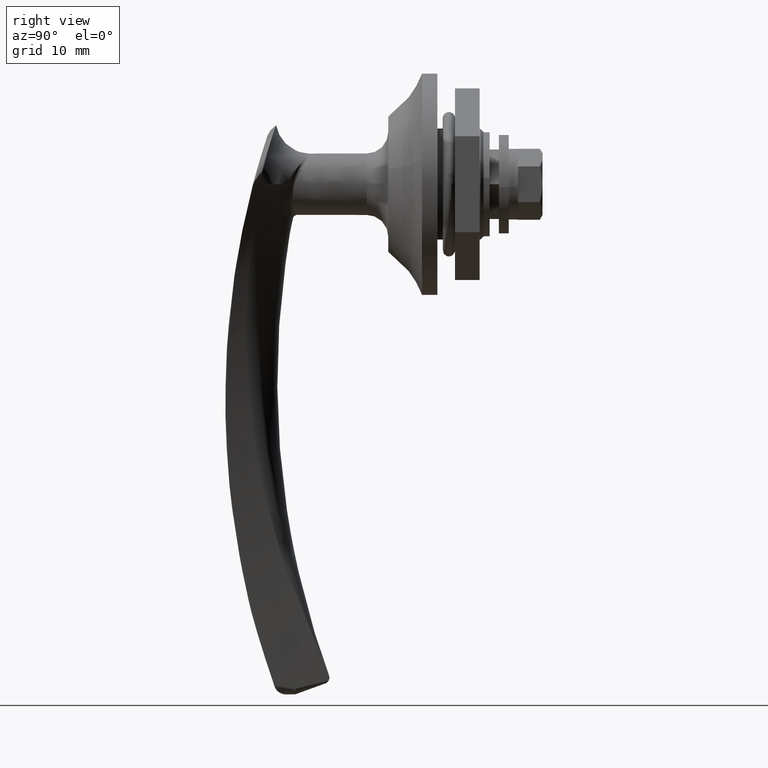
[diagram: clean part render]
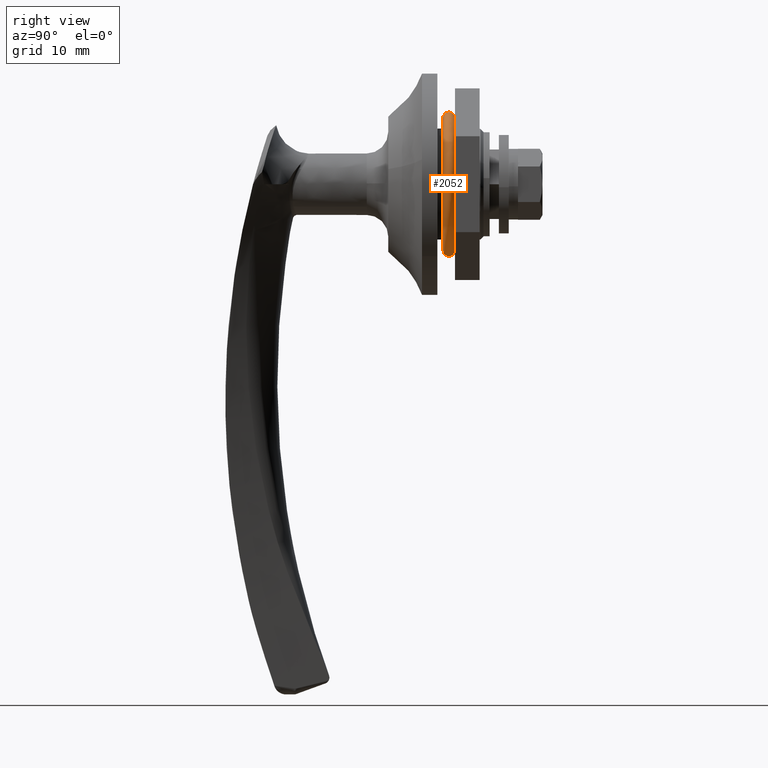
[diagram: same view with one face highlighted and labeled with its STEP entity id]
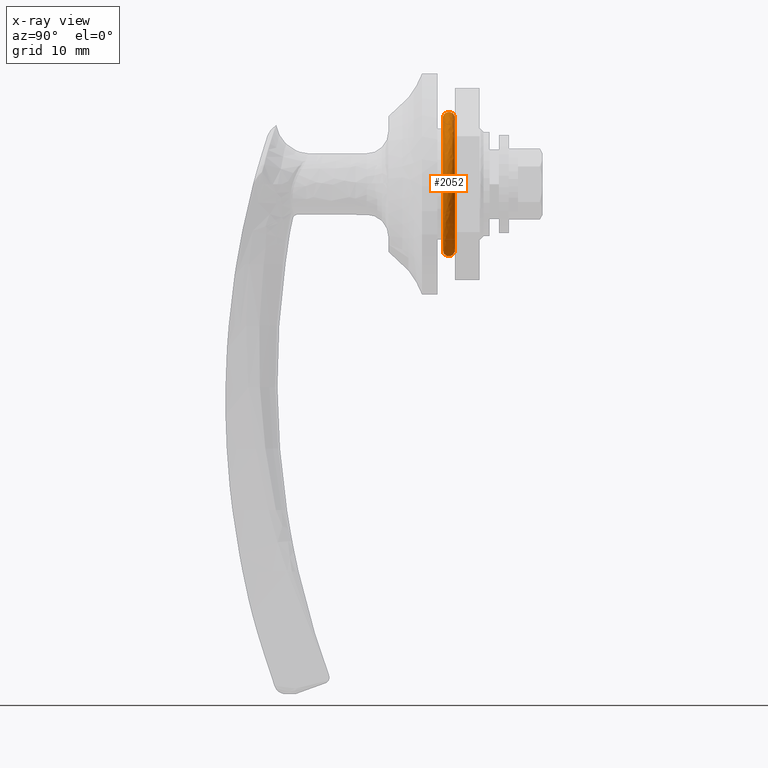
[diagram: x-ray of the same camera — body ghosted, the highlighted face saturated]
A machine part, right view. The second image highlights one B-rep face of the part: STEP entity #2052.
The next image is the same camera in x-ray: the body ghosted, the highlighted face saturated — about 0% of this face is hidden behind the body in this view.
In plain terms, the highlighted face is a freeform B-spline surface patch.
Its self-contained STEP definition (entity closure, byte-faithful):
#1343=CARTESIAN_POINT('',(10.836264016436090,-7.960000526219821,7.580618177243414));
#1344=VERTEX_POINT('',#1343);
#1345=CARTESIAN_POINT('',(10.836264016425959,0.0,10.992150850792280));
#1346=VERTEX_POINT('',#1345);
#1347=CARTESIAN_POINT('',(10.836264016436086,-7.960000526219821,7.580618177243415));
#1348=CARTESIAN_POINT('',(10.836264016425963,-4.711065575594165,10.992150850792280));
#1349=CARTESIAN_POINT('',(10.836264016425959,0.0,10.992150850792280));
#1357=(BOUNDED_CURVE()B_SPLINE_CURVE(2,(#1347,#1348,#1349),.UNSPECIFIED.,.F.,.U.)B_SPLINE_CURVE_WITH_KNOTS((3,3),(0.871317008225169,1.0),.UNSPECIFIED.)CURVE()GEOMETRIC_REPRESENTATION_ITEM()RATIONAL_B_SPLINE_CURVE((0.853680524324454,0.849238497330099,1.0))REPRESENTATION_ITEM(''));
#1358=EDGE_CURVE('',#1344,#1346,#1357,.T.);
#1416=CARTESIAN_POINT('',(10.836264016425959,-10.991732303369110,0.095923394671522));
#1417=VERTEX_POINT('',#1416);
#1423=CARTESIAN_POINT('',(10.836264016425959,0.0,-10.992150850792280));
#1424=VERTEX_POINT('',#1423);
#1425=CARTESIAN_POINT('',(10.836264016425959,0.0,-10.992150850792280));
#1426=CARTESIAN_POINT('',(10.836264016425961,-10.992150850792280,-10.992150850792280));
#1427=CARTESIAN_POINT('',(10.836264016425959,-10.992150850792280,0.0));
#1428=CARTESIAN_POINT('',(10.836264016425964,-10.992150850792280,0.047962610504658));
#1429=CARTESIAN_POINT('',(10.836264016425963,-10.991732303369110,0.095923394671522));
#1437=(BOUNDED_CURVE()B_SPLINE_CURVE(2,(#1425,#1426,#1427,#1428,#1429),.UNSPECIFIED.,.F.,.U.)B_SPLINE_CURVE_WITH_KNOTS((3,2,3),(0.500000000000000,0.750000000000000,0.751539894337185),.UNSPECIFIED.)CURVE()GEOMETRIC_REPRESENTATION_ITEM()RATIONAL_B_SPLINE_CURVE((1.0,0.707106781186547,1.0,0.998195901563797,0.996414028095320))REPRESENTATION_ITEM(''));
#1438=EDGE_CURVE('',#1424,#1417,#1437,.T.);
#1440=CARTESIAN_POINT('',(10.836264015824010,10.913029411000570,-1.316498938181733));
#1441=VERTEX_POINT('',#1440);
#1442=CARTESIAN_POINT('',(10.836264015824009,10.913029411000569,-1.316498938181733));
#1443=CARTESIAN_POINT('',(10.836264016425961,9.745802143800123,-10.992150850792282));
#1444=CARTESIAN_POINT('',(10.836264016425959,0.0,-10.992150850792280));
#1452=(BOUNDED_CURVE()B_SPLINE_CURVE(2,(#1442,#1443,#1444),.UNSPECIFIED.,.F.,.U.)B_SPLINE_CURVE_WITH_KNOTS((3,3),(0.270732403715610,0.500000000000000),.UNSPECIFIED.)CURVE()GEOMETRIC_REPRESENTATION_ITEM()RATIONAL_B_SPLINE_CURVE((0.955449597717405,0.731396303018567,1.0))REPRESENTATION_ITEM(''));
#1453=EDGE_CURVE('',#1441,#1424,#1452,.T.);
#1455=CARTESIAN_POINT('',(10.836264015993150,0.690202862807114,10.970460353734980));
#1456=VERTEX_POINT('',#1455);
#1472=CARTESIAN_POINT('',(10.836264016425959,0.0,10.992150850792280));
#1473=CARTESIAN_POINT('',(10.836264016425961,0.345442257058135,10.992150850792278));
#1474=CARTESIAN_POINT('',(10.836264015993146,0.690202862807114,10.970460353734982));
#1482=(BOUNDED_CURVE()B_SPLINE_CURVE(2,(#1472,#1473,#1474),.UNSPECIFIED.,.F.,.U.)B_SPLINE_CURVE_WITH_KNOTS((3,3),(0.0,0.010968089260653),.UNSPECIFIED.)CURVE()GEOMETRIC_REPRESENTATION_ITEM()RATIONAL_B_SPLINE_CURVE((1.0,0.987150084128857,0.975427680451846))REPRESENTATION_ITEM(''));
#1483=EDGE_CURVE('',#1346,#1456,#1482,.T.);
#1502=CARTESIAN_POINT('',(10.836264016425957,-10.991732303369114,0.095923394671522));
#1503=CARTESIAN_POINT('',(10.836264016425961,-10.953848839930410,4.436938326126100));
#1504=CARTESIAN_POINT('',(10.836264016436086,-7.960000526219821,7.580618177243413));
#1512=(BOUNDED_CURVE()B_SPLINE_CURVE(2,(#1502,#1503,#1504),.UNSPECIFIED.,.F.,.U.)B_SPLINE_CURVE_WITH_KNOTS((3,3),(0.751539894337186,0.871317008225168),.UNSPECIFIED.)CURVE()GEOMETRIC_REPRESENTATION_ITEM()RATIONAL_B_SPLINE_CURVE((0.996414028095317,0.857815128018838,0.853680524324454))REPRESENTATION_ITEM(''));
#1513=EDGE_CURVE('',#1417,#1344,#1512,.T.);
#1559=CARTESIAN_POINT('',(10.851271133225840,-3.719715318302238,9.903326518320645));
#1560=VERTEX_POINT('',#1559);
#1561=CARTESIAN_POINT('',(10.851271133225840,0.0,10.578854294189201));
#1562=VERTEX_POINT('',#1561);
#1563=CARTESIAN_POINT('',(10.851271133225840,-3.719715318302237,9.903326518320645));
#1564=CARTESIAN_POINT('',(10.851271133225842,-1.921198075944244,10.578854294189199));
#1565=CARTESIAN_POINT('',(10.851271133225840,0.0,10.578854294189201));
#1573=(BOUNDED_CURVE()B_SPLINE_CURVE(2,(#1563,#1564,#1565),.UNSPECIFIED.,.F.,.U.)B_SPLINE_CURVE_WITH_KNOTS((3,3),(0.940284170899042,1.0),.UNSPECIFIED.)CURVE()GEOMETRIC_REPRESENTATION_ITEM()RATIONAL_B_SPLINE_CURVE((0.893499554635928,0.930038554402025,1.0))REPRESENTATION_ITEM(''));
#1574=EDGE_CURVE('',#1560,#1562,#1573,.T.);
#1576=CARTESIAN_POINT('',(10.851271133151551,0.664251757182051,10.557979341318950));
#1577=VERTEX_POINT('',#1576);
#1578=CARTESIAN_POINT('',(10.851271133225840,0.0,10.578854294189201));
#1579=CARTESIAN_POINT('',(10.851271133225836,0.332453889535047,10.578854294189197));
#1580=CARTESIAN_POINT('',(10.851271133151547,0.664251757182051,10.557979341318953));
#1588=(BOUNDED_CURVE()B_SPLINE_CURVE(2,(#1578,#1579,#1580),.UNSPECIFIED.,.F.,.U.)B_SPLINE_CURVE_WITH_KNOTS((3,3),(0.0,0.010968089261328),.UNSPECIFIED.)CURVE()GEOMETRIC_REPRESENTATION_ITEM()RATIONAL_B_SPLINE_CURVE((1.0,0.987150084128065,0.975427680450402))REPRESENTATION_ITEM(''));
#1589=EDGE_CURVE('',#1562,#1577,#1588,.T.);
#1591=CARTESIAN_POINT('',(10.851271132507931,10.502707754238291,-1.266999573522850));
#1592=VERTEX_POINT('',#1591);
#1608=CARTESIAN_POINT('',(10.851271133225840,0.0,-10.578854294189201));
#1609=VERTEX_POINT('',#1608);
#1610=CARTESIAN_POINT('',(10.851271132507927,10.502707754238298,-1.266999573522849));
#1611=CARTESIAN_POINT('',(10.851271133225840,9.379367355234580,-10.578854294189199));
#1612=CARTESIAN_POINT('',(10.851271133225840,0.0,-10.578854294189201));
#1620=(BOUNDED_CURVE()B_SPLINE_CURVE(2,(#1610,#1611,#1612),.UNSPECIFIED.,.F.,.U.)B_SPLINE_CURVE_WITH_KNOTS((3,3),(0.270732403724593,0.500000000000000),.UNSPECIFIED.)CURVE()GEOMETRIC_REPRESENTATION_ITEM()RATIONAL_B_SPLINE_CURVE((0.955449597699848,0.731396303029092,1.0))REPRESENTATION_ITEM(''));
#1621=EDGE_CURVE('',#1592,#1609,#1620,.T.);
#1623=CARTESIAN_POINT('',(10.851271133225840,-10.559122598462629,-0.645823604648349));
#1624=VERTEX_POINT('',#1623);
#1625=CARTESIAN_POINT('',(10.851271133225840,0.0,-10.578854294189201));
#1626=CARTESIAN_POINT('',(10.851271133225838,-9.951592415387072,-10.578854294189199));
#1627=CARTESIAN_POINT('',(10.851271133225843,-10.559122598462636,-0.645823604648349));
#1635=(BOUNDED_CURVE()B_SPLINE_CURVE(2,(#1625,#1626,#1627),.UNSPECIFIED.,.F.,.U.)B_SPLINE_CURVE_WITH_KNOTS((3,3),(0.500000000000000,0.739332962240790),.UNSPECIFIED.)CURVE()GEOMETRIC_REPRESENTATION_ITEM()RATIONAL_B_SPLINE_CURVE((1.0,0.719603993284546,0.976072041670677))REPRESENTATION_ITEM(''));
#1636=EDGE_CURVE('',#1609,#1624,#1635,.T.);
#1714=CARTESIAN_POINT('',(10.851271133225836,-10.559122598462629,-0.645823604648349));
#1715=CARTESIAN_POINT('',(10.851271133225842,-10.578854294189204,-0.323213231256773));
#1716=CARTESIAN_POINT('',(10.851271133225840,-10.578854294189201,0.0));
#1717=CARTESIAN_POINT('',(10.851271133225842,-10.578854294189201,7.327015995615085));
#1718=CARTESIAN_POINT('',(10.851271133225840,-3.719715318302238,9.903326518320645));
#1726=(BOUNDED_CURVE()B_SPLINE_CURVE(2,(#1714,#1715,#1716,#1717,#1718),.UNSPECIFIED.,.F.,.U.)B_SPLINE_CURVE_WITH_KNOTS((3,2,3),(0.739332962240790,0.750000000000000,0.940284170899041),.UNSPECIFIED.)CURVE()GEOMETRIC_REPRESENTATION_ITEM()RATIONAL_B_SPLINE_CURVE((0.976072041670677,0.987502787902002,1.0,0.777068226784523,0.893499554635927))REPRESENTATION_ITEM(''));
#1727=EDGE_CURVE('',#1624,#1560,#1726,.T.);
#1931=CARTESIAN_POINT('',(10.843426542434676,10.882492984873142,-1.312815160585779));
#1932=CARTESIAN_POINT('',(10.843426542434678,9.642731472020071,-11.589734845546797));
#1933=CARTESIAN_POINT('',(10.843426542434679,-0.688271563272054,-10.939763227184949));
#1934=CARTESIAN_POINT('',(10.843426542434678,-11.628034790457003,-10.251491663912892));
#1935=CARTESIAN_POINT('',(10.843426542434679,-10.939763227184949,0.688271563272049));
#1936=CARTESIAN_POINT('',(10.843426542434678,-10.251491663912889,11.628034790457004));
#1937=CARTESIAN_POINT('',(10.843426542434679,0.688271563272048,10.939763227184949));
#1938=CARTESIAN_POINT('',(10.649795165591527,11.771326764155843,-1.420040082513599));
#1939=CARTESIAN_POINT('',(10.649795165591527,10.430307027437141,-12.536333004440245));
#1940=CARTESIAN_POINT('',(10.649795165591527,-0.744486533096181,-11.833274585951063));
#1941=CARTESIAN_POINT('',(10.649795165591527,-12.577761119047242,-11.088788052854881));
#1942=CARTESIAN_POINT('',(10.649795165591527,-11.833274585951063,0.744486533096175));
#1943=CARTESIAN_POINT('',(10.649795165591527,-11.088788052854877,12.577761119047247));
#1944=CARTESIAN_POINT('',(10.649795165591527,0.744486533096174,11.833274585951063));
#1945=CARTESIAN_POINT('',(9.741003858425664,11.657634065980297,-1.406324705162085));
#1946=CARTESIAN_POINT('',(9.741003858425662,10.329566493043037,-12.415251536475051));
#1947=CARTESIAN_POINT('',(9.741003858425662,-0.737295951745504,-11.718983568219270));
#1948=CARTESIAN_POINT('',(9.741003858425662,-12.456279519964772,-10.981687616473765));
#1949=CARTESIAN_POINT('',(9.741003858425662,-11.718983568219270,0.737295951745498));
#1950=CARTESIAN_POINT('',(9.741003858425662,-10.981687616473760,12.456279519964776));
#1951=CARTESIAN_POINT('',(9.741003858425662,0.737295951745497,11.718983568219270));
#1952=CARTESIAN_POINT('',(8.832212551259799,11.543941367804750,-1.392609327810568));
#1953=CARTESIAN_POINT('',(8.832212551259799,10.228825958648931,-12.294170068509858));
#1954=CARTESIAN_POINT('',(8.832212551259799,-0.730105370394827,-11.604692550487473));
#1955=CARTESIAN_POINT('',(8.832212551259799,-12.334797920882298,-10.874587180092645));
#1956=CARTESIAN_POINT('',(8.832212551259799,-11.604692550487474,0.730105370394821));
#1957=CARTESIAN_POINT('',(8.832212551259799,-10.874587180092641,12.334797920882306));
#1958=CARTESIAN_POINT('',(8.832212551259799,0.730105370394820,11.604692550487474));
#1959=CARTESIAN_POINT('',(8.866735931143843,10.635202669391605,-1.282983165685211));
#1960=CARTESIAN_POINT('',(8.866735931143841,9.423613103541992,-11.326373390567094));
#1961=CARTESIAN_POINT('',(8.866735931143841,-0.672631498789118,-10.691171520899980));
#1962=CARTESIAN_POINT('',(8.866735931143841,-11.363803019689094,-10.018540022110857));
#1963=CARTESIAN_POINT('',(8.866735931143841,-10.691171520899980,0.672631498789113));
#1964=CARTESIAN_POINT('',(8.866735931143841,-10.018540022110853,11.363803019689097));
#1965=CARTESIAN_POINT('',(8.866735931143841,0.672631498789112,10.691171520899980));
#1966=CARTESIAN_POINT('',(8.901259311027882,9.726463970978459,-1.173357003559854));
#1967=CARTESIAN_POINT('',(8.901259311027886,8.618400248435046,-10.358576712624329));
#1968=CARTESIAN_POINT('',(8.901259311027884,-0.615157627183409,-9.777650491312476));
#1969=CARTESIAN_POINT('',(8.901259311027884,-10.392808118495884,-9.162492864129069));
#1970=CARTESIAN_POINT('',(8.901259311027884,-9.777650491312478,0.615157627183404));
#1971=CARTESIAN_POINT('',(8.901259311027884,-9.162492864129064,10.392808118495889));
#1972=CARTESIAN_POINT('',(8.901259311027884,0.615157627183404,9.777650491312478));
#1973=CARTESIAN_POINT('',(9.816094850547531,9.681057882750945,-1.167879416660341));
#1974=CARTESIAN_POINT('',(9.816094850547529,8.578166938238438,-10.310219730114721));
#1975=CARTESIAN_POINT('',(9.816094850547531,-0.612285884525742,-9.732005448860148));
#1976=CARTESIAN_POINT('',(9.816094850547531,-10.344291333385890,-9.119719564334405));
#1977=CARTESIAN_POINT('',(9.816094850547531,-9.732005448860148,0.612285884525737));
#1978=CARTESIAN_POINT('',(9.816094850547531,-9.119719564334401,10.344291333385891));
#1979=CARTESIAN_POINT('',(9.816094850547531,0.612285884525737,9.732005448860148));
#1980=CARTESIAN_POINT('',(10.730930390067178,9.635651794523424,-1.162401829760828));
#1981=CARTESIAN_POINT('',(10.730930390067179,8.537933628041831,-10.261862747605115));
#1982=CARTESIAN_POINT('',(10.730930390067178,-0.609414141868075,-9.686360406407818));
#1983=CARTESIAN_POINT('',(10.730930390067178,-10.295774548275892,-9.076946264539743));
#1984=CARTESIAN_POINT('',(10.730930390067178,-9.686360406407818,0.609414141868070));
#1985=CARTESIAN_POINT('',(10.730930390067178,-9.076946264539739,10.295774548275896));
#1986=CARTESIAN_POINT('',(10.730930390067178,0.609414141868070,9.686360406407818));
#1987=CARTESIAN_POINT('',(10.856573210159130,10.536440954147347,-1.271068995169471));
#1988=CARTESIAN_POINT('',(10.856573210159132,9.336102576207830,-11.221193254529934));
#1989=CARTESIAN_POINT('',(10.856573210159130,-0.666385238834062,-10.591890061937891));
#1990=CARTESIAN_POINT('',(10.856573210159132,-11.258275300771947,-9.925504823103827));
#1991=CARTESIAN_POINT('',(10.856573210159130,-10.591890061937891,0.666385238834056));
#1992=CARTESIAN_POINT('',(10.856573210159132,-9.925504823103820,11.258275300771951));
#1993=CARTESIAN_POINT('',(10.856573210159130,0.666385238834055,10.591890061937891));
#2001=(BOUNDED_SURFACE()B_SPLINE_SURFACE(2,2,((#1931,#1938,#1945,#1952,#1959,#1966,#1973,#1980,#1987),(#1932,#1939,#1946,#1953,#1960,#1967,#1974,#1981,#1988),(#1933,#1940,#1947,#1954,#1961,#1968,#1975,#1982,#1989),(#1934,#1941,#1948,#1955,#1962,#1969,#1976,#1983,#1990),(#1935,#1942,#1949,#1956,#1963,#1970,#1977,#1984,#1991),(#1936,#1943,#1950,#1957,#1964,#1971,#1978,#1985,#1992),(#1937,#1944,#1951,#1958,#1965,#1972,#1979,#1986,#1993)),.UNSPECIFIED.,.F.,.F.,.U.)B_SPLINE_SURFACE_WITH_KNOTS((3,2,2,3),(3,2,2,2,3),(0.0,18.676836285838728,38.131874083587398,57.586911881336071),(0.0,1.555072904603685,3.110145809207371,4.665218713811056,6.220291618414741),.UNSPECIFIED.)GEOMETRIC_REPRESENTATION_ITEM()RATIONAL_B_SPLINE_SURFACE(((0.977505800795127,0.720819646664875,0.977505800795127,0.720819646664875,0.977505800795127,0.720819646664875,0.977505800795127,0.720819646664875,0.977505800795127),(0.718822509939086,0.530064770160527,0.718822509939086,0.530064770160527,0.718822509939086,0.530064770160527,0.718822509939086,0.530064770160527,0.718822509939086),(1.0,0.737407027230471,1.0,0.737407027230471,1.0,0.737407027230471,1.0,0.737407027230471,1.0),(0.707106781186548,0.521425509449279,0.707106781186548,0.521425509449279,0.707106781186548,0.521425509449279,0.707106781186548,0.521425509449279,0.707106781186548),(1.0,0.737407027230471,1.0,0.737407027230471,1.0,0.737407027230471,1.0,0.737407027230471,1.0),(0.707106781186548,0.521425509449279,0.707106781186548,0.521425509449279,0.707106781186548,0.521425509449279,0.707106781186548,0.521425509449279,0.707106781186548),(1.0,0.737407027230471,1.0,0.737407027230471,1.0,0.737407027230471,1.0,0.737407027230471,1.0)))REPRESENTATION_ITEM('')SURFACE());
#2002=ORIENTED_EDGE('',*,*,#1453,.T.);
#2003=ORIENTED_EDGE('',*,*,#1438,.T.);
#2004=ORIENTED_EDGE('',*,*,#1513,.T.);
#2005=ORIENTED_EDGE('',*,*,#1358,.T.);
#2006=ORIENTED_EDGE('',*,*,#1483,.T.);
#2007=CARTESIAN_POINT('',(10.836264015993152,0.690202862807114,10.970460353734982));
#2008=CARTESIAN_POINT('',(10.621391509808472,0.744261796354145,11.829702497726679));
#2009=CARTESIAN_POINT('',(9.741003858425662,0.737295951745505,11.718983568219270));
#2010=CARTESIAN_POINT('',(8.832212551259799,0.730105370394829,11.604692550487473));
#2011=CARTESIAN_POINT('',(8.866735931143841,0.672631498789119,10.691171520899980));
#2012=CARTESIAN_POINT('',(8.901259311027884,0.615157627183410,9.777650491312476));
#2013=CARTESIAN_POINT('',(9.816094850547531,0.612285884525743,9.732005448860148));
#2014=CARTESIAN_POINT('',(10.699834071026606,0.609511755725462,9.687911934241404));
#2015=CARTESIAN_POINT('',(10.851271133151545,0.664251757182051,10.557979341318948));
#2023=(BOUNDED_CURVE()B_SPLINE_CURVE(2,(#2007,#2008,#2009,#2010,#2011,#2012,#2013,#2014,#2015),.UNSPECIFIED.,.F.,.U.)B_SPLINE_CURVE_WITH_KNOTS((3,2,2,2,3),(-7.953524253105520,-6.0,-4.0,-2.0,-0.050582124928353),.UNSPECIFIED.)CURVE()GEOMETRIC_REPRESENTATION_ITEM()RATIONAL_B_SPLINE_CURVE((0.988079395221889,0.743509129499824,1.0,0.737407027230471,1.0,0.737407027230471,1.0,0.744048282507439,0.987053418250165))REPRESENTATION_ITEM(''));
#2024=EDGE_CURVE('',#1456,#1577,#2023,.T.);
#2025=ORIENTED_EDGE('',*,*,#2024,.T.);
#2026=ORIENTED_EDGE('',*,*,#1589,.F.);
#2027=ORIENTED_EDGE('',*,*,#1574,.F.);
#2028=ORIENTED_EDGE('',*,*,#1727,.F.);
#2029=ORIENTED_EDGE('',*,*,#1636,.F.);
#2030=ORIENTED_EDGE('',*,*,#1621,.F.);
#2031=CARTESIAN_POINT('',(10.836264015824003,10.913029411000565,-1.316498938181733));
#2032=CARTESIAN_POINT('',(10.621391508569793,11.767773375848327,-1.419611417680271));
#2033=CARTESIAN_POINT('',(9.741003858425662,11.657634065980295,-1.406324705162084));
#2034=CARTESIAN_POINT('',(8.832212551259799,11.543941367804749,-1.392609327810568));
#2035=CARTESIAN_POINT('',(8.866735931143841,10.635202669391605,-1.282983165685212));
#2036=CARTESIAN_POINT('',(8.901259311027882,9.726463970978459,-1.173357003559855));
#2037=CARTESIAN_POINT('',(9.816094850547531,9.681057882750944,-1.167879416660342));
#2038=CARTESIAN_POINT('',(10.699834064329920,9.637195200358661,-1.162588019320725));
#2039=CARTESIAN_POINT('',(10.851271132507932,10.502707754238298,-1.266999573522850));
#2047=(BOUNDED_CURVE()B_SPLINE_CURVE(2,(#2031,#2032,#2033,#2034,#2035,#2036,#2037,#2038,#2039),.UNSPECIFIED.,.F.,.U.)B_SPLINE_CURVE_WITH_KNOTS((3,2,2,2,3),(-7.953524251061944,-6.0,-4.0,-2.0,-0.050582135919471),.UNSPECIFIED.)CURVE()GEOMETRIC_REPRESENTATION_ITEM()RATIONAL_B_SPLINE_CURVE((0.965853339975359,0.726784487292492,0.977505800795127,0.720819646664875,0.977505800795127,0.720819646664875,0.977505800795127,0.727311513633307,0.964850439355633))REPRESENTATION_ITEM(''));
#2048=EDGE_CURVE('',#1441,#1592,#2047,.T.);
#2049=ORIENTED_EDGE('',*,*,#2048,.F.);
#2050=EDGE_LOOP('',(#2002,#2003,#2004,#2005,#2006,#2025,#2026,#2027,#2028,#2029,#2030,#2049));
#2051=FACE_OUTER_BOUND('',#2050,.T.);
#2052=ADVANCED_FACE('',(#2051),#2001,.T.);